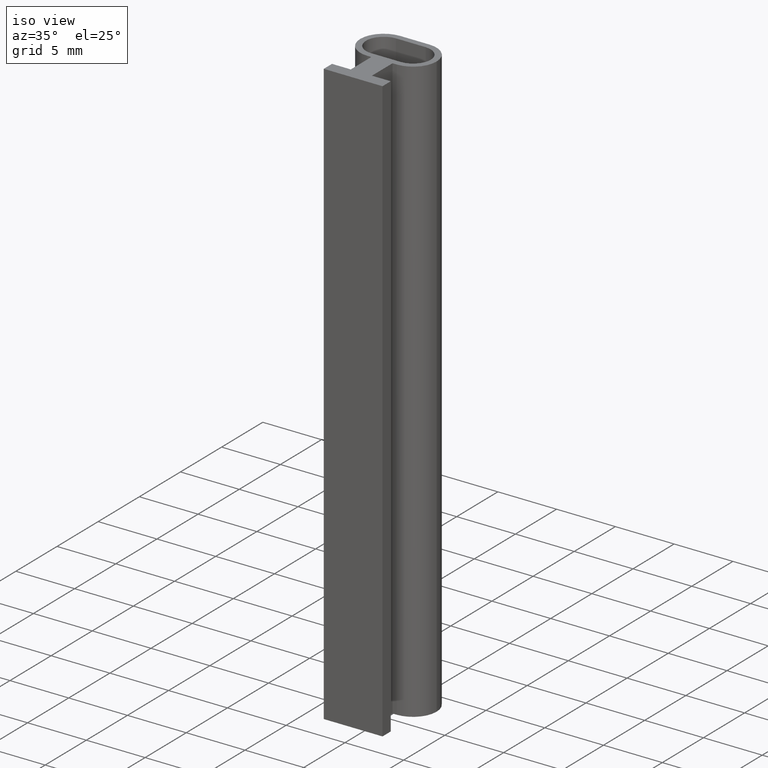
[diagram: clean part render]
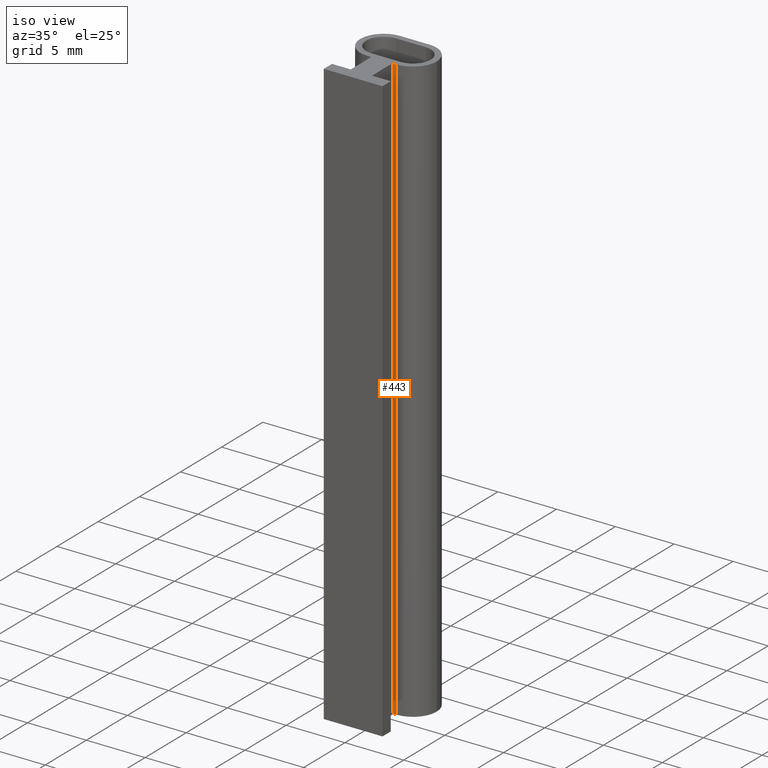
[diagram: same view with one face highlighted and labeled with its STEP entity id]
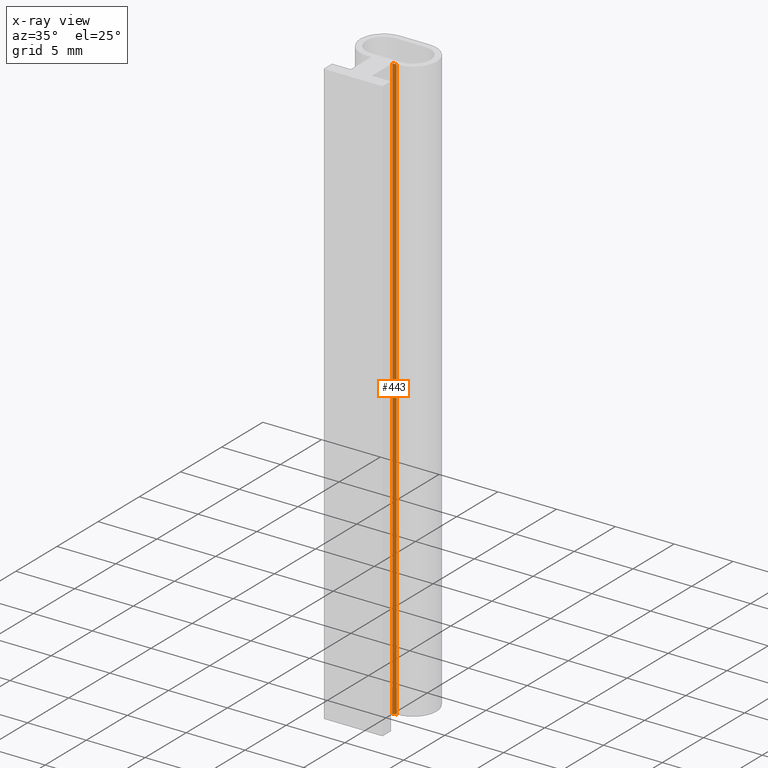
[diagram: x-ray of the same camera — body ghosted, the highlighted face saturated]
A machine part, iso view. The second image highlights one B-rep face of the part: STEP entity #443.
The next image is the same camera in x-ray: the body ghosted, the highlighted face saturated — about 0% of this face is hidden behind the body in this view.
In plain terms, the highlighted planar face has unit normal (0, -1, 0).
Its self-contained STEP definition (entity closure, byte-faithful):
#7=CARTESIAN_POINT('',(1.250000000000000,-0.500000000000000,-50.0));
#8=VERTEX_POINT('',#7);
#26=CARTESIAN_POINT('',(1.250000000000000,-0.500000000000000,0.0));
#27=VERTEX_POINT('',#26);
#35=CARTESIAN_POINT('',(1.250000000000000,-0.500000000000000,-50.0));
#36=DIRECTION('',(0.0,0.0,1.0));
#37=VECTOR('',#36,50.0);
#38=LINE('',#35,#37);
#39=EDGE_CURVE('',#8,#27,#38,.T.);
#396=CARTESIAN_POINT('',(0.900000000000000,-0.500000000000000,-50.0));
#397=VERTEX_POINT('',#396);
#404=CARTESIAN_POINT('',(0.900000000000000,-0.500000000000000,0.0));
#405=VERTEX_POINT('',#404);
#406=CARTESIAN_POINT('',(0.900000000000000,-0.500000000000000,-50.0));
#407=DIRECTION('',(0.0,0.0,1.0));
#408=VECTOR('',#407,50.0);
#409=LINE('',#406,#408);
#410=EDGE_CURVE('',#397,#405,#409,.T.);
#422=CARTESIAN_POINT('',(0.900000000000000,-0.500000000000000,-50.0));
#423=DIRECTION('',(0.0,-1.0,0.0));
#424=DIRECTION('',(1.0,0.0,0.0));
#425=AXIS2_PLACEMENT_3D('',#422,#423,#424);
#426=PLANE('',#425);
#427=CARTESIAN_POINT('',(0.900000000000000,-0.500000000000000,-50.0));
#428=DIRECTION('',(1.0,0.0,0.0));
#429=VECTOR('',#428,0.350000000000000);
#430=LINE('',#427,#429);
#431=EDGE_CURVE('',#397,#8,#430,.T.);
#432=ORIENTED_EDGE('',*,*,#431,.T.);
#433=ORIENTED_EDGE('',*,*,#39,.T.);
#434=CARTESIAN_POINT('',(0.900000000000000,-0.500000000000000,0.0));
#435=DIRECTION('',(1.0,0.0,0.0));
#436=VECTOR('',#435,0.350000000000000);
#437=LINE('',#434,#436);
#438=EDGE_CURVE('',#405,#27,#437,.T.);
#439=ORIENTED_EDGE('',*,*,#438,.F.);
#440=ORIENTED_EDGE('',*,*,#410,.F.);
#441=EDGE_LOOP('',(#432,#433,#439,#440));
#442=FACE_OUTER_BOUND('',#441,.T.);
#443=ADVANCED_FACE('',(#442),#426,.T.);